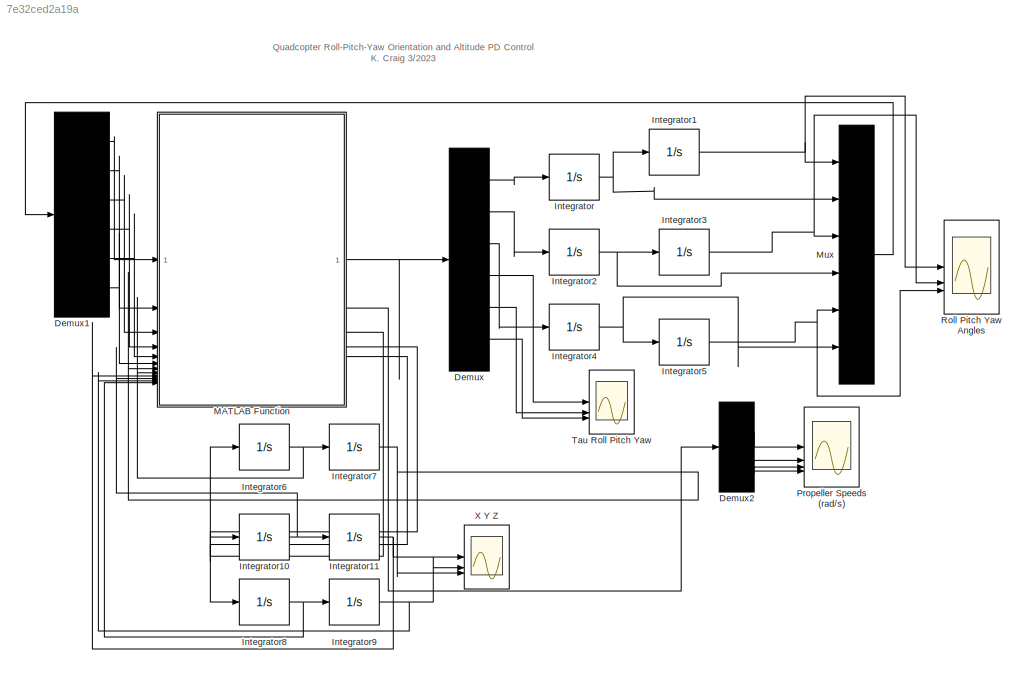
MODEL slx_7e32ced2a19a
KIND model
CONFIG AbsTol = auto
CONFIG EnableMultiTasking = on
CONFIG FixedStep = 0.0001
CONFIG MaxStep = auto
CONFIG MinStep = auto
CONFIG RelTol = 1e-3
CONFIG SampleTimeConstraint = Unconstrained
CONFIG SolverName = ode5
CONFIG StartTime = 0.0
CONFIG StopTime = 6
BLOCK [Demux] Demux
  DisplayOption = none
  Outputs = 6
BLOCK [Demux] Demux1
  DisplayOption = none
  Outputs = 6
BLOCK [Demux] Demux2
  DisplayOption = none
BLOCK [Integrator] Integrator
BLOCK [Integrator] Integrator1
  InitialCondition = 0.1745
BLOCK [Integrator] Integrator10
BLOCK [Integrator] Integrator11
BLOCK [Integrator] Integrator2
BLOCK [Integrator] Integrator3
  InitialCondition = 0.1745
BLOCK [Integrator] Integrator4
BLOCK [Integrator] Integrator5
  InitialCondition = 0.1745
BLOCK [Integrator] Integrator6
BLOCK [Integrator] Integrator7
  InitialCondition = 1
BLOCK [Integrator] Integrator8
BLOCK [Integrator] Integrator9
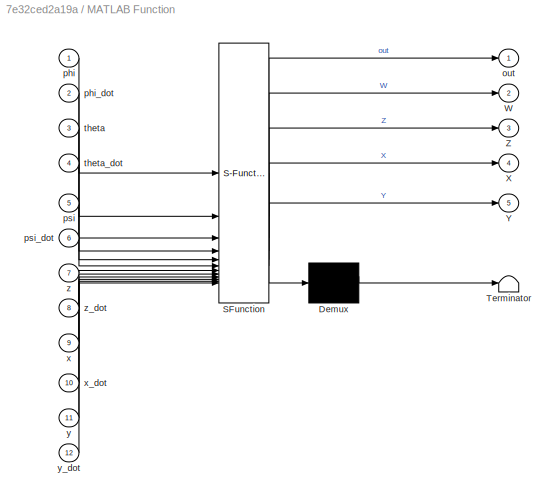
BLOCK [SubSystem] MATLAB Function
  ErrorFcn = Stateflow.Translate.translate
  PermitHierarchicalResolution = ExplicitOnly
  SFBlockType = MATLAB Function
  TreatAsAtomicUnit = on
BLOCK [Demux] MATLAB Function/ Demux 
  Outputs = 1
BLOCK [S-Function] MATLAB Function/ SFunction 
  EnableBusSupport = on
  FunctionName = sf_sfun
  PortCounts = [12 6]
  SFcnIsStateOwnerBlock = off
  SFunctionDeploymentMode = off
  Tag = Stateflow S-Function 2
BLOCK [Terminator] MATLAB Function/ Terminator 
BLOCK [Outport] MATLAB Function/W
  Port = 2
BLOCK [Outport] MATLAB Function/X
  Port = 4
BLOCK [Outport] MATLAB Function/Y
  Port = 5
BLOCK [Outport] MATLAB Function/Z
  Port = 3
BLOCK [Outport] MATLAB Function/out
  VectorParamsAs1DForOutWhenUnconnected = off
BLOCK [Inport] MATLAB Function/phi
BLOCK [Inport] MATLAB Function/phi_dot
  Port = 2
BLOCK [Inport] MATLAB Function/psi
  Port = 5
BLOCK [Inport] MATLAB Function/psi_dot
  Port = 6
BLOCK [Inport] MATLAB Function/theta
  Port = 3
BLOCK [Inport] MATLAB Function/theta_dot
  Port = 4
BLOCK [Inport] MATLAB Function/x
  Port = 9
BLOCK [Inport] MATLAB Function/x_dot
  Port = 10
BLOCK [Inport] MATLAB Function/y
  Port = 11
BLOCK [Inport] MATLAB Function/y_dot
  Port = 12
BLOCK [Inport] MATLAB Function/z
  Port = 7
BLOCK [Inport] MATLAB Function/z_dot
  Port = 8
BLOCK [Mux] Mux
  Inputs = 6
BLOCK [Scope] Propeller Speeds (rad//s)
  Floating = off
  NumInputPorts = 4
  ScopeSpecificationString = Simulink.scopes.TimeScopeBlockCfg('CurrentConfiguration', extmgr.ConfigurationSet(extmgr.Configuration('Core','General UI',true),extmgr.Configuration('Core','Source UI',true),extmgr.Configuration('Sources','WiredSimulink',true,'DataLoggingSaveFormat','StructureWithTime','DataLoggingDecimation','1','DataLoggingDecimateData',true,'DataLoggingVariableName','ScopeData1'),extmgr.Configuration('Visuals'...<+1779ch>
BLOCK [Scope] Roll Pitch Yaw Angles
  Floating = off
  NumInputPorts = 3
  ScopeSpecificationString = Simulink.scopes.TimeScopeBlockCfg('CurrentConfiguration', extmgr.ConfigurationSet(extmgr.Configuration('Core','General UI',true),extmgr.Configuration('Core','Source UI',true),extmgr.Configuration('Sources','WiredSimulink',true,'DataLoggingSaveFormat','StructureWithTime','DataLoggingDecimation','1','DataLoggingDecimateData',true,'DataLoggingVariableName','ScopeData1'),extmgr.Configuration('Visuals'...<+1744ch>
BLOCK [Scope] Tau Roll Pitch Yaw
  Floating = off
  NumInputPorts = 3
  ScopeSpecificationString = Simulink.scopes.TimeScopeBlockCfg('CurrentConfiguration', extmgr.ConfigurationSet(extmgr.Configuration('Core','General UI',true),extmgr.Configuration('Core','Source UI',true),extmgr.Configuration('Sources','WiredSimulink',true,'DataLoggingSaveFormat','StructureWithTime','DataLoggingDecimation','1','DataLoggingDecimateData',true,'DataLoggingVariableName','ScopeData1'),extmgr.Configuration('Visuals'...<+1793ch>
BLOCK [Scope] X Y Z
  Floating = off
  NumInputPorts = 3
  ScopeSpecificationString = Simulink.scopes.TimeScopeBlockCfg('CurrentConfiguration', extmgr.ConfigurationSet(extmgr.Configuration('Core','General UI',true),extmgr.Configuration('Core','Source UI',true),extmgr.Configuration('Sources','WiredSimulink',true,'DataLoggingSaveFormat','StructureWithTime','DataLoggingDecimation','1','DataLoggingDecimateData',true,'DataLoggingVariableName','ScopeData1'),extmgr.Configuration('Visuals'...<+1726ch>
ANNOTATION (root): Quadcopter Roll-Pitch-Yaw Orientation and Altitude PD Control K. Craig 3/2023
LINE Demux1:1 -> MATLAB Function:1
LINE Demux1:2 -> MATLAB Function:2
LINE Demux1:3 -> MATLAB Function:3
LINE Demux1:4 -> MATLAB Function:4
LINE Demux1:5 -> MATLAB Function:5
LINE Demux1:6 -> MATLAB Function:6
LINE Demux2:1 -> Propeller Speeds (rad//s):1
LINE Demux2:2 -> Propeller Speeds (rad//s):2
LINE Demux2:3 -> Propeller Speeds (rad//s):3
LINE Demux2:4 -> Propeller Speeds (rad//s):4
LINE Demux:1 -> Integrator:1
LINE Demux:2 -> Integrator2:1
LINE Demux:3 -> Integrator4:1
LINE Demux:4 -> Tau Roll Pitch Yaw:1
LINE Demux:5 -> Tau Roll Pitch Yaw:2
LINE Demux:6 -> Tau Roll Pitch Yaw:3
NET Integrator10:1 -> Integrator11:1, MATLAB Function:10
NET Integrator11:1 -> MATLAB Function:9, X Y Z:1
NET Integrator1:1 -> Mux:1, Roll Pitch Yaw Angles:1
NET Integrator2:1 -> Integrator3:1, Mux:4
NET Integrator3:1 -> Mux:3, Roll Pitch Yaw Angles:2
NET Integrator4:1 -> Integrator5:1, Mux:6
NET Integrator5:1 -> Mux:5, Roll Pitch Yaw Angles:3
NET Integrator6:1 -> Integrator7:1, MATLAB Function:8
NET Integrator7:1 -> MATLAB Function:7, X Y Z:3
NET Integrator8:1 -> Integrator9:1, MATLAB Function:12
NET Integrator9:1 -> MATLAB Function:11, X Y Z:2
NET Integrator:1 -> Integrator1:1, Mux:2
LINE MATLAB Function:1 -> Demux:1
LINE MATLAB Function:2 -> Demux2:1
LINE MATLAB Function:3 -> Integrator6:1
LINE MATLAB Function:4 -> Integrator10:1
LINE MATLAB Function:5 -> Integrator8:1
LINE Mux:1 -> Demux1:1
note: NET lines group one-source signal fan-out (src -> all destinations, sorted); 1:1 wires keep LINE
CHART MATLAB Function states=1 transitions=1
  STATE_LABEL 'eML_blk_kernel()'
  STATE_LABEL 'SCRIPT:\nfunction [out,W,Z,X,Y] = quadcopter(phi, phi_dot, theta,...\n    theta_dot, psi, psi_dot, z, z_dot, x, x_dot, y, y_dot )\n\n% Quadcopter Parameters (SI Units)\nIx = 4.856E-3;\nIy = 4.856E-3;\nIz = 8.801E-3;\nm = 0.468;\nl = 0.225;\ng = 9.81;\nk = 2.980E-6;\nb = 1.140E-7;\nAx = 0.25;\nAy = 0.25;\nAz = 0.25;\n\n% PD Control Gains\nK_z_d = 2.5;\nK_z_p = 1.5;\nK_phi_d = 1.75;\nK_theta_d = 1.75;\nK_psi_d = 1.75;\nK_...<+2709ch>'
CHART  states=0 transitions=0
